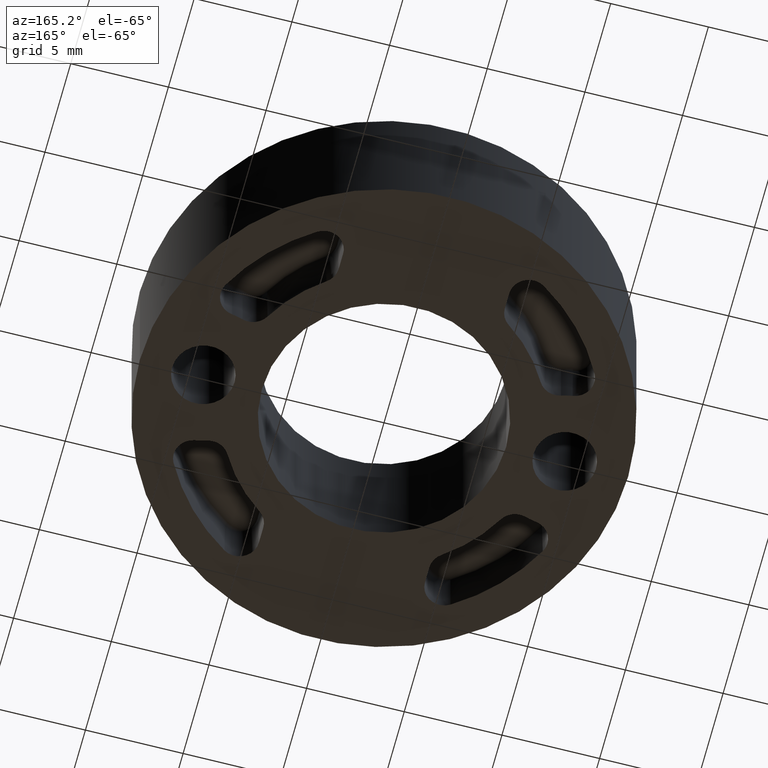
[diagram: clean part render]
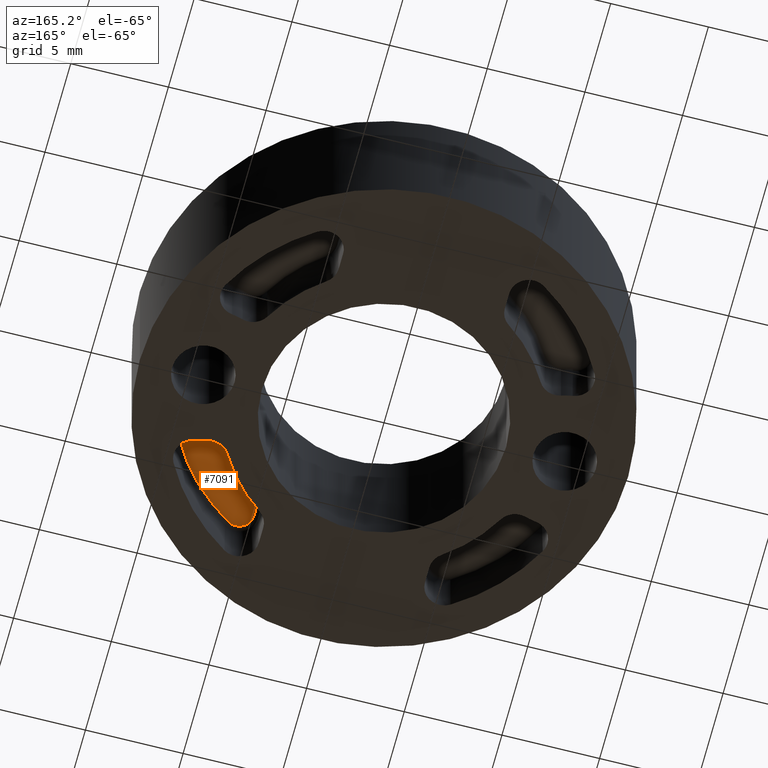
[diagram: same view with one face highlighted and labeled with its STEP entity id]
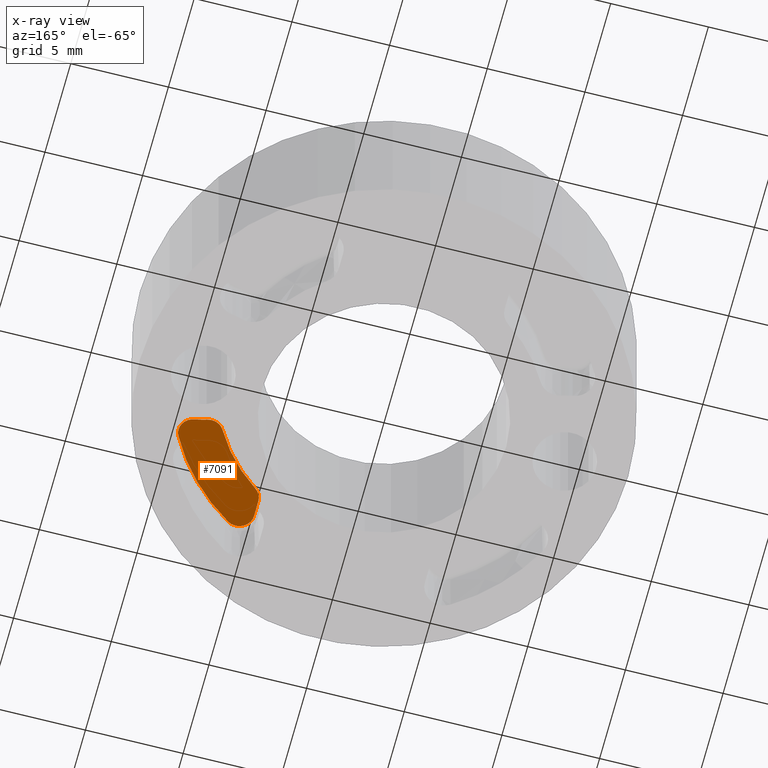
[diagram: x-ray of the same camera — body ghosted, the highlighted face saturated]
A machine part, auxiliary view. The second image highlights one B-rep face of the part: STEP entity #7091.
The next image is the same camera in x-ray: the body ghosted, the highlighted face saturated — about 0% of this face is hidden behind the body in this view.
In plain terms, the highlighted planar face has unit normal (0, 0, 1).
Its self-contained STEP definition (entity closure, byte-faithful):
#1717 = VERTEX_POINT ( 'NONE', #9543 ) ;
#1720 = EDGE_CURVE ( 'NONE', #1725, #1717, #9512, .T. ) ;
#1725 = VERTEX_POINT ( 'NONE', #9520 ) ;
#2960 = DIRECTION ( 'NONE',  ( 1.000000000000000000, 0.0000000000000000000, 0.0000000000000000000 ) ) ;
#2961 = DIRECTION ( 'NONE',  ( 4.746415829343455000E-029, -1.143848312570467100E-029, -1.000000000000000000 ) ) ;
#2962 = CARTESIAN_POINT ( 'NONE',  ( 8.567162162162164300, -4.549036435028512000, 3.000000000000000900 ) ) ;
#2963 = AXIS2_PLACEMENT_3D ( 'NONE', #2962, #2961, #2960 ) ;
#2964 = CIRCLE ( 'NONE', #2963, 0.7510953525922091600 ) ;
#3115 = CARTESIAN_POINT ( 'NONE',  ( 9.230539036894514400, -4.901279746896812600, 3.000000000000000900 ) ) ;
#3116 = DIRECTION ( 'NONE',  ( 1.000000000000000000, 4.731287430827687000E-030, 0.0000000000000000000 ) ) ;
#3117 = DIRECTION ( 'NONE',  ( 4.746415829343455000E-029, -1.143848312570467100E-029, -1.000000000000000000 ) ) ;
#3118 = AXIS2_PLACEMENT_3D ( 'NONE', #3124, #3117, #3116 ) ;
#3119 = CIRCLE ( 'NONE', #3118, 10.45109535259220800 ) ;
#3120 = DIRECTION ( 'NONE',  ( -1.000000000000000000, -4.731287430827687700E-030, 4.746415829343455000E-029 ) ) ;
#3121 = DIRECTION ( 'NONE',  ( 4.746415829343455000E-029, 1.143848312570467100E-029, 1.000000000000000000 ) ) ;
#3122 = CARTESIAN_POINT ( 'NONE',  ( 7.859594594594597100, -4.384834410627089300, 3.000000000000000900 ) ) ;
#3123 = AXIS2_PLACEMENT_3D ( 'NONE', #3122, #3121, #3120 ) ;
#3124 = CARTESIAN_POINT ( 'NONE',  ( -7.395570986446985700E-029, 0.0000000000000000000, 2.999999999999993800 ) ) ;
#3125 = PLANE ( 'NONE',  #3123 ) ;
#3140 = FACE_OUTER_BOUND ( 'NONE', #7092, .T. ) ;
#3164 = DIRECTION ( 'NONE',  ( 1.000000000000000000, 0.0000000000000000000, 0.0000000000000000000 ) ) ;
#3165 = DIRECTION ( 'NONE',  ( 4.746415829343455000E-029, -1.143848312570467100E-029, -1.000000000000000000 ) ) ;
#3166 = CARTESIAN_POINT ( 'NONE',  ( 5.250000000000001800, -8.156439174051385500, 3.000000000000000900 ) ) ;
#3167 = AXIS2_PLACEMENT_3D ( 'NONE', #3166, #3165, #3164 ) ;
#3168 = CIRCLE ( 'NONE', #3167, 0.7510953525922065000 ) ;
#3169 = CARTESIAN_POINT ( 'NONE',  ( 5.656520680526710100, -8.788012736662825100, 3.000000000000000900 ) ) ;
#3651 = CARTESIAN_POINT ( 'NONE',  ( 8.086622211598744100, -3.668871639386132300, 3.000000000000000900 ) ) ;
#3652 = DIRECTION ( 'NONE',  ( 1.000000000000000000, -3.464387317781675000E-015, 0.0000000000000000000 ) ) ;
#3653 = DIRECTION ( 'NONE',  ( 4.746415829343455000E-029, -1.143848312570467100E-029, -1.000000000000000000 ) ) ;
#3654 = CARTESIAN_POINT ( 'NONE',  ( 7.859594594594597100, -4.384834410627089300, 3.000000000000000900 ) ) ;
#3655 = AXIS2_PLACEMENT_3D ( 'NONE', #3654, #3653, #3652 ) ;
#3656 = CIRCLE ( 'NONE', #3655, 0.7510953525922108300 ) ;
#3657 = CARTESIAN_POINT ( 'NONE',  ( 7.203671819788056000, -4.018897883103931300, 3.000000000000008000 ) ) ;
#3658 = DIRECTION ( 'NONE',  ( 1.000000000000000000, 4.731287430827687700E-030, 0.0000000000000000000 ) ) ;
#3659 = DIRECTION ( 'NONE',  ( -4.746415829343455000E-029, 1.143848312570467100E-029, 1.000000000000000000 ) ) ;
#3660 = CARTESIAN_POINT ( 'NONE',  ( -7.395570986446985700E-029, 0.0000000000000000000, 2.999999999999993800 ) ) ;
#3661 = AXIS2_PLACEMENT_3D ( 'NONE', #3660, #3659, #3658 ) ;
#3662 = CIRCLE ( 'NONE', #3661, 8.248904647407790900 ) ;
#3663 = CARTESIAN_POINT ( 'NONE',  ( 4.811861044321215500, -6.700031430685220000, 3.000000000000004400 ) ) ;
#3664 = DIRECTION ( 'NONE',  ( 1.000000000000000000, 0.0000000000000000000, 0.0000000000000000000 ) ) ;
#3665 = DIRECTION ( 'NONE',  ( 4.746415829343455000E-029, -1.143848312570467100E-029, -1.000000000000000000 ) ) ;
#3666 = CARTESIAN_POINT ( 'NONE',  ( 5.250000000000000000, -7.310095758606722800, 2.999999999999997300 ) ) ;
#3667 = AXIS2_PLACEMENT_3D ( 'NONE', #3666, #3665, #3664 ) ;
#3668 = CIRCLE ( 'NONE', #3667, 0.7510953525922091600 ) ;
#3669 = CARTESIAN_POINT ( 'NONE',  ( 4.498904647407790900, -7.310095758606719200, 2.999999999999997300 ) ) ;
#3670 = DIRECTION ( 'NONE',  ( 1.024834271951773400E-015, 1.000000000000000000, 1.138917931912835800E-029 ) ) ;
#3671 = VECTOR ( 'NONE', #3670, 1000.000000000000000 ) ;
#3672 = CARTESIAN_POINT ( 'NONE',  ( 4.498904647407797200, -4.384834410627084000, 3.000000000000000900 ) ) ;
#3673 = LINE ( 'NONE', #3672, #3671 ) ;
#3674 = CARTESIAN_POINT ( 'NONE',  ( 4.498904647407791800, -8.156439174051385500, 3.000000000000000900 ) ) ;
#3750 = DIRECTION ( 'NONE',  ( 1.000000000000000000, 4.703608723960659200E-030, 0.0000000000000000000 ) ) ;
#3751 = DIRECTION ( 'NONE',  ( -4.746415829343455000E-029, 1.143848312570467100E-029, 1.000000000000000000 ) ) ;
#3752 = CARTESIAN_POINT ( 'NONE',  ( 9.250000000000000000, 1.734723475976807100E-015, 2.999999999999993800 ) ) ;
#3753 = AXIS2_PLACEMENT_3D ( 'NONE', #3752, #3751, #3750 ) ;
#3758 = CIRCLE ( 'NONE', #3753, 3.848904647407792400 ) ;
#7041 = ORIENTED_EDGE ( 'NONE', *, *, #7042, .T. ) ;
#7042 = EDGE_CURVE ( 'NONE', #1717, #7095, #2964, .T. ) ;
#7091 = ADVANCED_FACE ( 'NONE', ( #3140 ), #3125, .F. ) ;
#7092 = EDGE_LOOP ( 'NONE', ( #7093, #7097, #7248, #7251, #7254, #7257, #7260, #7280, #7041 ) ) ;
#7093 = ORIENTED_EDGE ( 'NONE', *, *, #7094, .T. ) ;
#7094 = EDGE_CURVE ( 'NONE', #7095, #7096, #3119, .T. ) ;
#7095 = VERTEX_POINT ( 'NONE', #3115 ) ;
#7096 = VERTEX_POINT ( 'NONE', #3169 ) ;
#7097 = ORIENTED_EDGE ( 'NONE', *, *, #7098, .T. ) ;
#7098 = EDGE_CURVE ( 'NONE', #7096, #7247, #3168, .T. ) ;
#7247 = VERTEX_POINT ( 'NONE', #3674 ) ;
#7248 = ORIENTED_EDGE ( 'NONE', *, *, #7249, .T. ) ;
#7249 = EDGE_CURVE ( 'NONE', #7247, #7250, #3673, .T. ) ;
#7250 = VERTEX_POINT ( 'NONE', #3669 ) ;
#7251 = ORIENTED_EDGE ( 'NONE', *, *, #7252, .T. ) ;
#7252 = EDGE_CURVE ( 'NONE', #7250, #7253, #3668, .T. ) ;
#7253 = VERTEX_POINT ( 'NONE', #3663 ) ;
#7254 = ORIENTED_EDGE ( 'NONE', *, *, #7255, .T. ) ;
#7255 = EDGE_CURVE ( 'NONE', #7253, #7256, #3662, .T. ) ;
#7256 = VERTEX_POINT ( 'NONE', #3657 ) ;
#7257 = ORIENTED_EDGE ( 'NONE', *, *, #7258, .T. ) ;
#7258 = EDGE_CURVE ( 'NONE', #7256, #7259, #3656, .T. ) ;
#7259 = VERTEX_POINT ( 'NONE', #3651 ) ;
#7260 = ORIENTED_EDGE ( 'NONE', *, *, #7279, .T. ) ;
#7279 = EDGE_CURVE ( 'NONE', #7259, #1725, #3758, .T. ) ;
#7280 = ORIENTED_EDGE ( 'NONE', *, *, #1720, .T. ) ;
#9507 = CARTESIAN_POINT ( 'NONE',  ( 8.567162162162164300, -4.549036435028512000, 3.000000000000000900 ) ) ;
#9509 = DIRECTION ( 'NONE',  ( 1.000000000000000000, 0.0000000000000000000, 0.0000000000000000000 ) ) ;
#9510 = DIRECTION ( 'NONE',  ( 4.746415829343455000E-029, -1.143848312570467100E-029, -1.000000000000000000 ) ) ;
#9511 = AXIS2_PLACEMENT_3D ( 'NONE', #9507, #9510, #9509 ) ;
#9512 = CIRCLE ( 'NONE', #9511, 0.7510953525922091600 ) ;
#9520 = CARTESIAN_POINT ( 'NONE',  ( 8.678657015765233900, -3.806262494784483000, 3.000000000000000900 ) ) ;
#9543 = CARTESIAN_POINT ( 'NONE',  ( 9.318257514754373400, -4.549036435028513700, 3.000000000000000900 ) ) ;